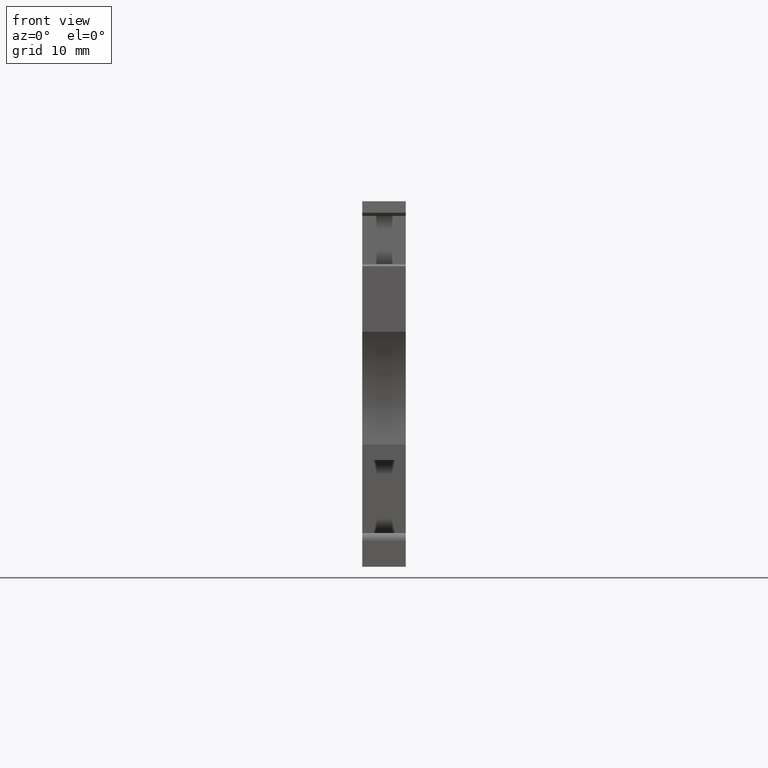
[diagram: clean part render]
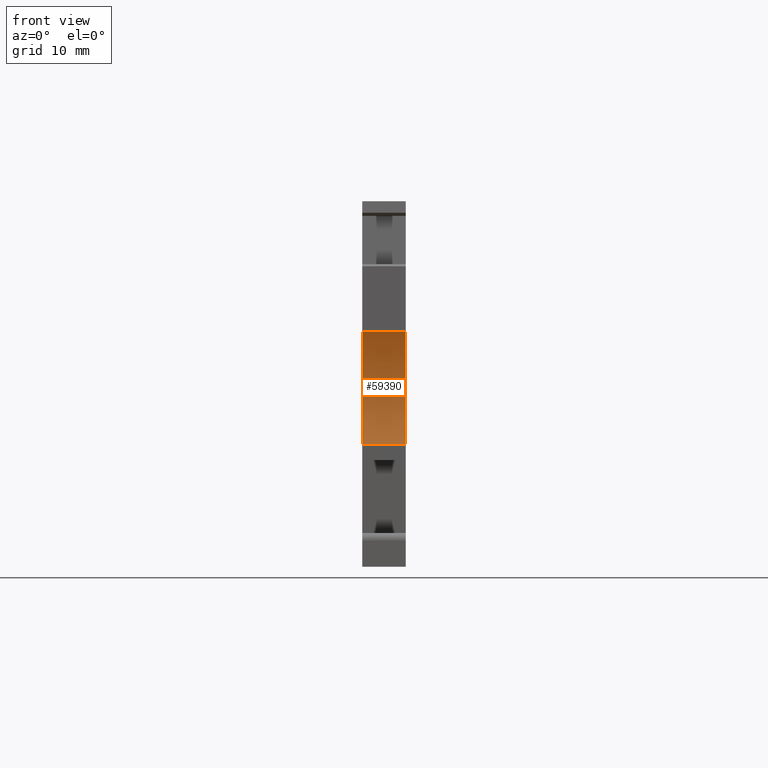
[diagram: same view with one face highlighted and labeled with its STEP entity id]
A machine part, front view. The second image highlights one B-rep face of the part: STEP entity #59390.
In plain terms, the highlighted cylindrical surface (partial cylindrical patch) has radius 15 mm, axis along (-1, 0, -0).
Its self-contained STEP definition (entity closure, byte-faithful):
#17580=CARTESIAN_POINT('',(6.2156364476717,-20.3695073817188,
5.14999999997524));
#17590=VERTEX_POINT('',#17580);
#17620=CARTESIAN_POINT('',(6.21563644767183,-20.3695073817185,
5.66500240168361));
#17630=DIRECTION('',(-2.23296203822727E-13,-3.95395569460147E-13,-1.));
#17640=VECTOR('',#17630,1.);
#17650=LINE('',#17620,#17640);
#17660=CARTESIAN_POINT('',(6.2156364476726,-20.3695073817224,
-2.47702582245734E-11));
#17670=VERTEX_POINT('',#17660);
#17680=EDGE_CURVE('',#17590,#17670,#17650,.T.);
#48680=CARTESIAN_POINT('',(15.6331535545352,-8.69430410521715,
-3.14888217433615E-11));
#48690=DIRECTION('',(-2.23296203822727E-13,-3.95395569460147E-13,-1.));
#48700=DIRECTION('',(0.965925826287002,0.258819045110233,
-3.18023385406397E-13));
#48710=AXIS2_PLACEMENT_3D('',#48680,#48690,#48700);
#48720=CIRCLE('',#48710,15.0000000001923);
#48730=CARTESIAN_POINT('',(0.64695022513737,-8.05110135670599,
-2.83968960368496E-11));
#48740=VERTEX_POINT('',#48730);
#48750=EDGE_CURVE('',#17670,#48740,#48720,.T.);
#55620=CARTESIAN_POINT('',(0.646950225137028,-8.05110135670435,
5.14999999997161));
#55630=VERTEX_POINT('',#55620);
#55660=CARTESIAN_POINT('',(15.6331535545364,-8.69430410521511,
5.14999999996852));
#55670=DIRECTION('',(-2.23296203822727E-13,-3.95395569460147E-13,-1.));
#55680=DIRECTION('',(0.965925826287002,0.258819045110233,
-3.18023385406397E-13));
#55690=AXIS2_PLACEMENT_3D('',#55660,#55670,#55680);
#55700=CIRCLE('',#55690,15.0000000001923);
#55710=EDGE_CURVE('',#17590,#55630,#55700,.T.);
#59230=CARTESIAN_POINT('',(15.6331535545365,-8.69430410521491,
5.66500240167689));
#59240=DIRECTION('',(-2.23296203822727E-13,-3.95395569460147E-13,-1.));
#59250=DIRECTION('',(0.965925826287002,0.258819045110233,
-3.18023385406397E-13));
#59260=AXIS2_PLACEMENT_3D('',#59230,#59240,#59250);
#59270=CYLINDRICAL_SURFACE('',#59260,15.0000000001923);
#59280=ORIENTED_EDGE('',*,*,#17680,.T.);
#59290=ORIENTED_EDGE('',*,*,#55710,.F.);
#59300=CARTESIAN_POINT('',(0.646950225137777,-8.05110135670647,
5.66500240167998));
#59310=DIRECTION('',(-2.23296203822727E-13,-3.95395569460147E-13,-1.));
#59320=VECTOR('',#59310,1.);
#59330=LINE('',#59300,#59320);
#59340=EDGE_CURVE('',#55630,#48740,#59330,.T.);
#59350=ORIENTED_EDGE('',*,*,#59340,.F.);
#59360=ORIENTED_EDGE('',*,*,#48750,.T.);
#59370=EDGE_LOOP('',(#59360,#59350,#59290,#59280));
#59380=FACE_OUTER_BOUND('',#59370,.T.);
#59390=ADVANCED_FACE('',(#59380),#59270,.F.);